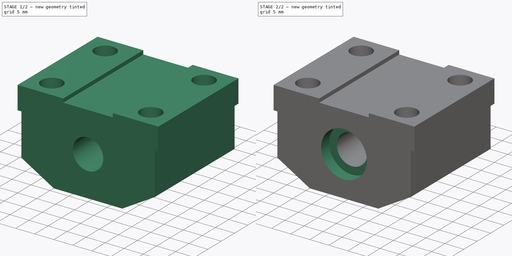
[diagram: build sequence overview — one tinted view per stage of 2, left to right]
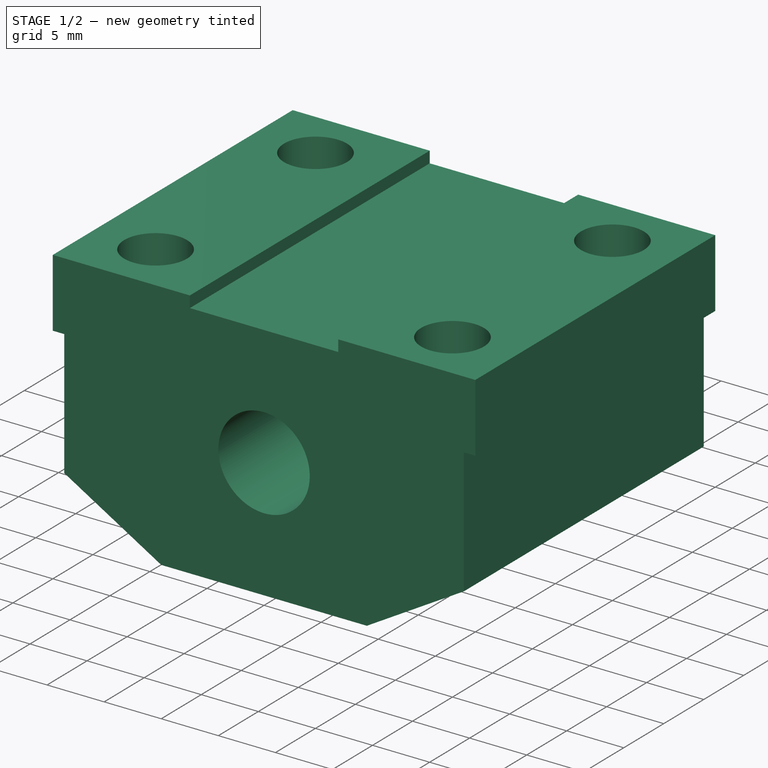
[diagram: stage 1 of 2 — iso view after this stage's code; geometry added in this stage tinted green]
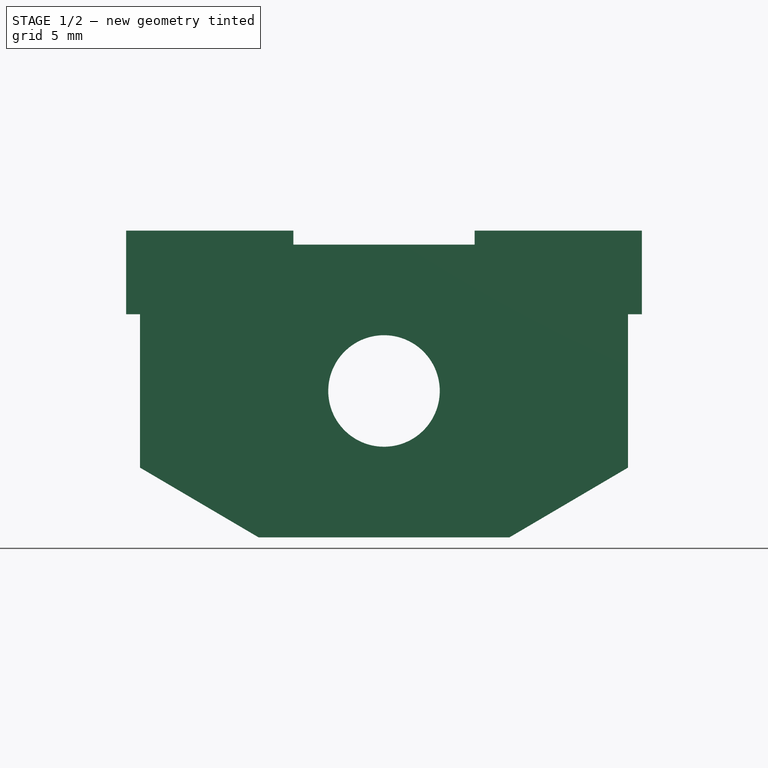
[diagram: stage 1 of 2 — front view after this stage's code; geometry added in this stage tinted green]
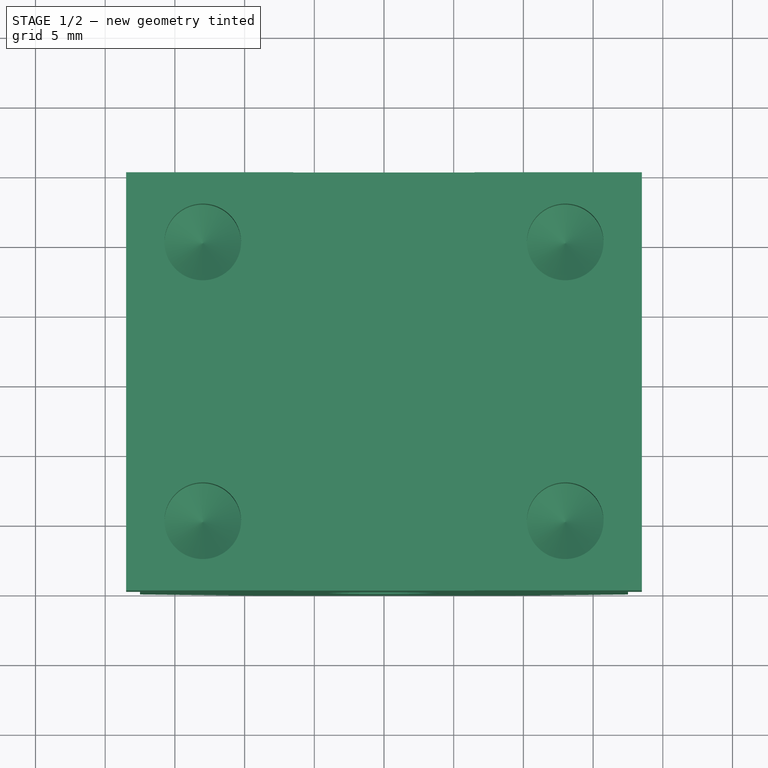
[diagram: stage 1 of 2 — top view after this stage's code; geometry added in this stage tinted green]
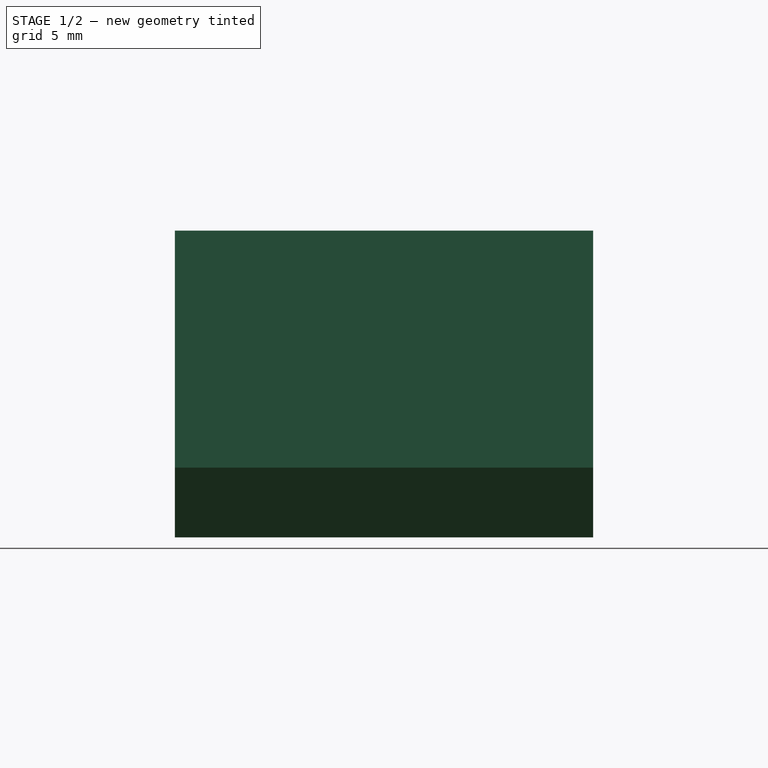
[diagram: stage 1 of 2 — right view after this stage's code; geometry added in this stage tinted green]
FCSTD DOCUMENT  (FreeCAD 1.0R39109 (Git))
Label: 1_linear_bearing
License: All rights reserved
LicenseURL: https://en.wikipedia.org/wiki/All_rights_reserved
objects: Sketcher::SketchObject×4, PartDesign::Pocket×2, App::FeaturePython×1, PartDesign::Pad×1, PartDesign::Hole×1, PartDesign::Body×1
note: 21 computed .brp shape members not serialized (recipe doc carries the construction recipe); baked Part::Feature solids carry a one-line shape summary decoded from their .brp

FEATURE [App::FeaturePython] dd  # WARN: FeaturePython — macro-defined, semantics opaque (R4)
  B_1 = 26
  C_1 = 20
  DynamicData = Created with DynamicData (v2.74) workbench. | This is a simple container object built | for holding custom properties.
  E_1 = 20.5
  F_1 = 28
  H_1 = 22
  L1_1 = 10
  L_1 = 30
  Q_1 = 80
  T_1 = 9
  W_1 = 35
  h1 = 7.5
FEATURE [Sketcher::SketchObject] Sketch
  ArcFitTolerance = 1e-06
  AttachmentSupport = -> [XZ_Plane]
  B_1 = 33
  C_1 = 22
  E_1 = 20.5
  F_1 = 28
  FullyConstrained = false
  H_1 = 22
  L1_1 = 10
  L_1 = 30
  MakeInternals = false
  MapMode = 5
  Placement = pos=(0,0,0) rot=(1,0,0;1.5708rad)
  Q_1 = 80
  T_1 = 9
  W_1 = 35
  h1 = 7.5
  expr: Constraints[27] = 12 mm
  expr: Constraints[33] = dd.H_1
  expr: Constraints[38] = dd.W_1
  sketch-geometry (20):
    g0: LineSegment [constr] StartX=17.5 StartY=-5.5 StartZ=0 EndX=17.5 EndY=17.5 EndZ=0
    g1: LineSegment StartX=-17.5 StartY=-5.5 StartZ=0 EndX=-17.5 EndY=5.5 EndZ=0
    g2: LineSegment StartX=-17.5 StartY=5.5 StartZ=0 EndX=-18.5 EndY=5.5 EndZ=0
    g3: LineSegment StartX=-18.5 StartY=5.5 StartZ=0 EndX=-18.5 EndY=11.5 EndZ=0
    g4: LineSegment StartX=17.5 StartY=-5.5 StartZ=0 EndX=17.5 EndY=5.5 EndZ=0
    g5: LineSegment StartX=17.5 StartY=5.5 StartZ=0 EndX=18.5 EndY=5.5 EndZ=0
    g6: LineSegment StartX=18.5 StartY=5.5 StartZ=0 EndX=18.5 EndY=11.5 EndZ=0
    g7: LineSegment StartX=-18.5 StartY=11.5 StartZ=0 EndX=-6.5 EndY=11.5 EndZ=0
    g8: LineSegment StartX=-6.5 StartY=11.5 StartZ=0 EndX=-6.5 EndY=10.5 EndZ=0
    g9: LineSegment StartX=-6.5 StartY=10.5 StartZ=0 EndX=6.5 EndY=10.5 EndZ=0
    g10: LineSegment StartX=6.5 StartY=10.5 StartZ=0 EndX=6.5 EndY=11.5 EndZ=0
    g11: LineSegment StartX=6.5 StartY=11.5 StartZ=0 EndX=18.5 EndY=11.5 EndZ=0
    g12: Circle CenterX=0 CenterY=0 CenterZ=0 NormalX=0 NormalY=0 NormalZ=1 AngleXU=0 Radius=4
    g13: LineSegment StartX=-17.5 StartY=-5.5 StartZ=0 EndX=-9 EndY=-10.5 EndZ=0
    g14: LineSegment StartX=-9 StartY=-10.5 StartZ=0 EndX=9 EndY=-10.5 EndZ=0
    g15: LineSegment StartX=9 StartY=-10.5 StartZ=0 EndX=17.5 EndY=-5.5 EndZ=0
    g16: LineSegment [constr] StartX=-4 StartY=0 StartZ=0 EndX=-17.5 EndY=0 EndZ=0
    g17: LineSegment [constr] StartX=0 StartY=4 StartZ=0 EndX=0 EndY=10.5 EndZ=0
    g18: LineSegment [constr] StartX=4 StartY=0 StartZ=0 EndX=17.5 EndY=0 EndZ=0
    g19: LineSegment [constr] StartX=0 StartY=-4 StartZ=0 EndX=0 EndY=-10.5 EndZ=0
  constraints (62):
    c: Vertical(g0)
    c: Coincident(g1,g2)
    c: Coincident(g2,g3)
    c: Coincident(g0,g4)
    c: PointOnObject(g4,g0)
    c: Coincident(g4,g5)
    c: Horizontal(g5)
    c: Coincident(g5,g6)
    c: Vertical(g6)
    c: Vertical(g3)
    c: Horizontal(g2)
    c: Equal(g3,g6)
    c: Equal(g2,g5)
    c: Distance(g6,g0) = 1
    c: Coincident(g3,g7)
    c: Horizontal(g7)
    c: Coincident(g7,g8)
    c: Coincident(g8,g9)
    c: Horizontal(g9)
    c: Coincident(g9,g10)
    c: Coincident(g10,g11)
    c: Coincident(g11,g6)
    c: Horizontal(g11)
    c: Vertical(g8)
    c: Vertical(g10)
    c: Equal(g7,g11)
    c: PointOnObject(g7,g11)
    c: Distance(g11,g11) = 12
    c: Coincident(g13,g14)
    c: Horizontal(g14)
    c: Coincident(g14,g15)
    c: Equal(g15,g13)
    c: Diameter(g12) = 8
    c: Distance(g14,g7) = 22
    c: Vertical(g1)
    c: Distance(g7,g9) = 1
    c: Distance(g1,g14) = 5
    c: Equal(g1,g4)
    c: Distance(g4,g1) = 35
    c: PointOnObject(g16,g12)
    c: PointOnObject(g16,g1)
    c: Horizontal(g16)
    c: PointOnObject(g17,g12)
    c: PointOnObject(g17,g9)
    c: Vertical(g17)
    c: PointOnObject(g18,g12)
    c: PointOnObject(g18,g4)
    c: Horizontal(g18)
    c: PointOnObject(g19,g12)
    c: PointOnObject(g19,g14)
    c: Vertical(g19)
    c: PointOnObject(g19,g-2)
    c: PointOnObject(g18,g-1)
    c: PointOnObject(g17,g-2)
    c: PointOnObject(g16,g-1)
    c: Equal(g16,g18)
    c: Equal(g17,g19)
    c: Coincident(g12,g-1)
    c: Distance(g3,g3) = 6
    c: DistanceX(g13,g14) = 18
    c: Coincident(g13,g1)
    c: Coincident(g15,g0)
FEATURE [PartDesign::Pad] Pad
  Direction = (0,-1,2e-16)
  Length = 30
  Length2 = 10
  Placement = pos=(0,0,0) rot=(1,0,0;1.5708rad)
  Profile = -> Sketch
  ReferenceAxis = -> Sketch [N_Axis]
  Refine = true
  Suppressed = false
  Type = 0
  expr: Length = dd.L_1
FEATURE [Sketcher::SketchObject] Sketch002
  ArcFitTolerance = 1e-06
  ExternalGeometry = -> [Pad]
  FullyConstrained = true
  MakeInternals = false
  MapMode = 5
  Placement = pos=(0,3.9e-15,17.5) rot=(0,0,1;3.14159rad)
  expr: Constraints[8] = dd.C_1
  expr: Constraints[9] = dd.B_1
  sketch-geometry (12):
    g0: LineSegment [constr] StartX=-13 StartY=25 StartZ=0 EndX=-13 EndY=5 EndZ=0
    g1: LineSegment [constr] StartX=-13 StartY=5 StartZ=0 EndX=13 EndY=5 EndZ=0
    g2: LineSegment [constr] StartX=13 StartY=5 StartZ=0 EndX=13 EndY=25 EndZ=0
    g3: LineSegment [constr] StartX=13 StartY=25 StartZ=0 EndX=-13 EndY=25 EndZ=0
    g4: Circle CenterX=-13 CenterY=25 CenterZ=0 NormalX=0 NormalY=0 NormalZ=1 AngleXU=0 Radius=2.5
    g5: Circle CenterX=13 CenterY=25 CenterZ=0 NormalX=0 NormalY=0 NormalZ=1 AngleXU=0 Radius=2.5
    g6: Circle CenterX=13 CenterY=5 CenterZ=0 NormalX=0 NormalY=0 NormalZ=1 AngleXU=0 Radius=2.5
    g7: Circle CenterX=-13 CenterY=5 CenterZ=0 NormalX=0 NormalY=0 NormalZ=1 AngleXU=0 Radius=2.5
    g8: LineSegment [constr] StartX=-13 StartY=15 StartZ=0 EndX=-18.5 EndY=15 EndZ=0
    g9: LineSegment [constr] StartX=13 StartY=15 StartZ=0 EndX=18.5 EndY=15 EndZ=0
    g10: LineSegment [constr] StartX=0 StartY=5 StartZ=0 EndX=0 EndY=0 EndZ=0
    g11: LineSegment [constr] StartX=-6.5 StartY=25 StartZ=0 EndX=-6.5 EndY=30 EndZ=0
  constraints (32):
    c: Coincident(g0,g1)
    c: Coincident(g1,g2)
    c: Coincident(g2,g3)
    c: Coincident(g3,g0)
    c: Vertical(g0)
    c: Vertical(g2)
    c: Horizontal(g1)
    c: Horizontal(g3)
    c: Distance(g2,g2) = 20
    c: Distance(g3,g3) = 26
    c: Coincident(g4,g0)
    c: Coincident(g5,g2)
    c: Coincident(g6,g1)
    c: Coincident(g7,g0)
    c: Equal(g4,g5)
    c: Equal(g5,g6)
    c: Equal(g6,g7)
    c: Diameter(g4) = 5
    c: Symmetric(g0,g0,g8)
    c: Horizontal(g8)
    c: Symmetric(g2,g2,g9)
    c: PointOnObject(g10,g1)
    c: PointOnObject(g11,g3)
    c: Vertical(g11)
    c: Vertical(g10)
    c: Equal(g9,g8)
    c: PointOnObject(g8,g-4)
    c: PointOnObject(g9,g-3)
    c: Equal(g11,g10)
    c: Coincident(g11,g-5)
    c: Coincident(g10,g-1)
    c: Horizontal(g9)
FEATURE [PartDesign::Hole] Hole
  BaseFeature = -> Pad
  CustomThreadClearance = 0
  Depth = 10
  DepthType = 0
  Diameter = 5.5
  DrillForDepth = false
  DrillPoint = 1
  DrillPointAngle = 118
  HoleCutCountersinkAngle = 90
  HoleCutCustomValues = false
  HoleCutDepth = 0
  HoleCutDiameter = 6.1
  HoleCutType = 0
  ModelThread = false
  Placement = pos=(0,0,0) rot=(1,0,0;1.5708rad)
  Profile = -> Sketch002
  Refine = true
  Suppressed = false
  Tapered = false
  TaperedAngle = 90
  ThreadClass = 0
  ThreadDepth = 10
  ThreadDepthType = 0
  ThreadDirection = 0
  ThreadFit = 0
  ThreadSize = 13
  ThreadType = 1
  Threaded = false
  UseCustomThreadClearance = false
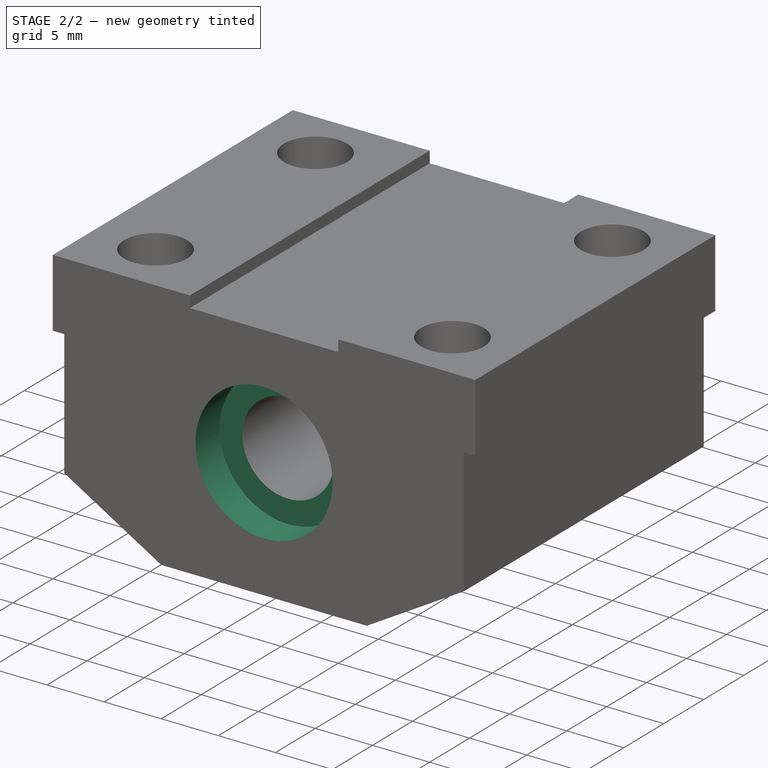
[diagram: stage 2 of 2 — iso view after this stage's code; geometry added in this stage tinted green]
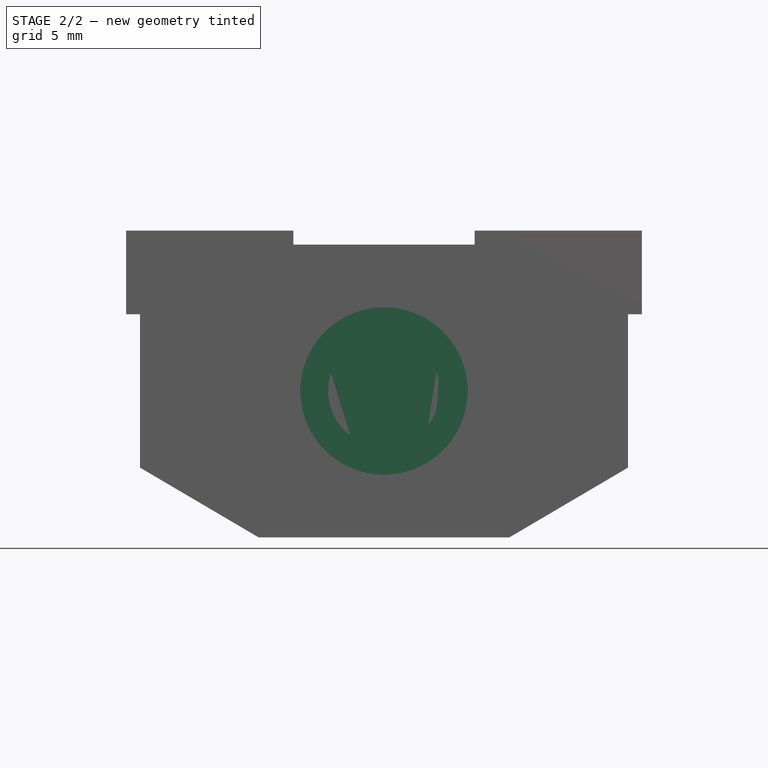
[diagram: stage 2 of 2 — front view after this stage's code; geometry added in this stage tinted green]
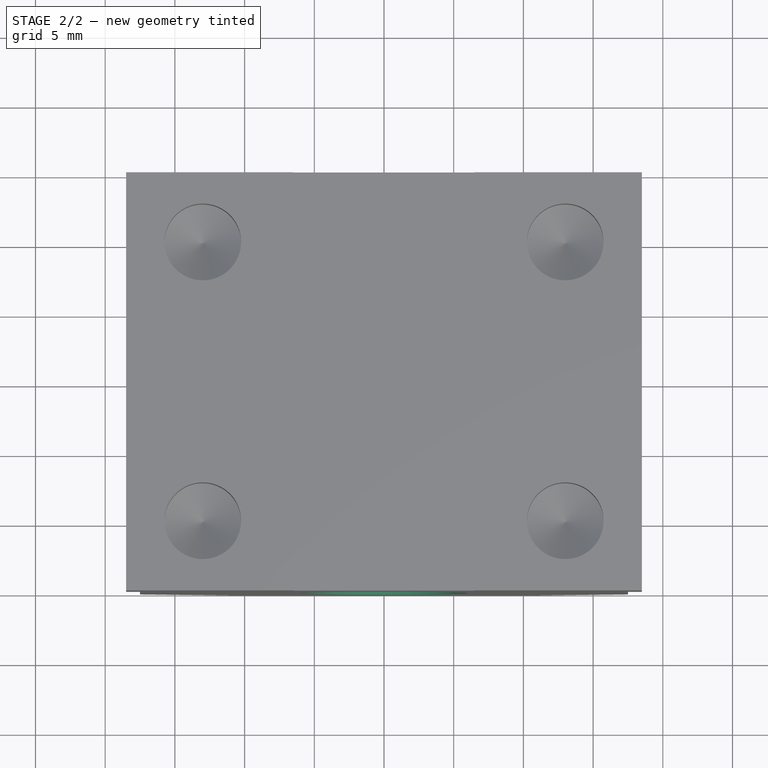
[diagram: stage 2 of 2 — top view after this stage's code; geometry added in this stage tinted green]
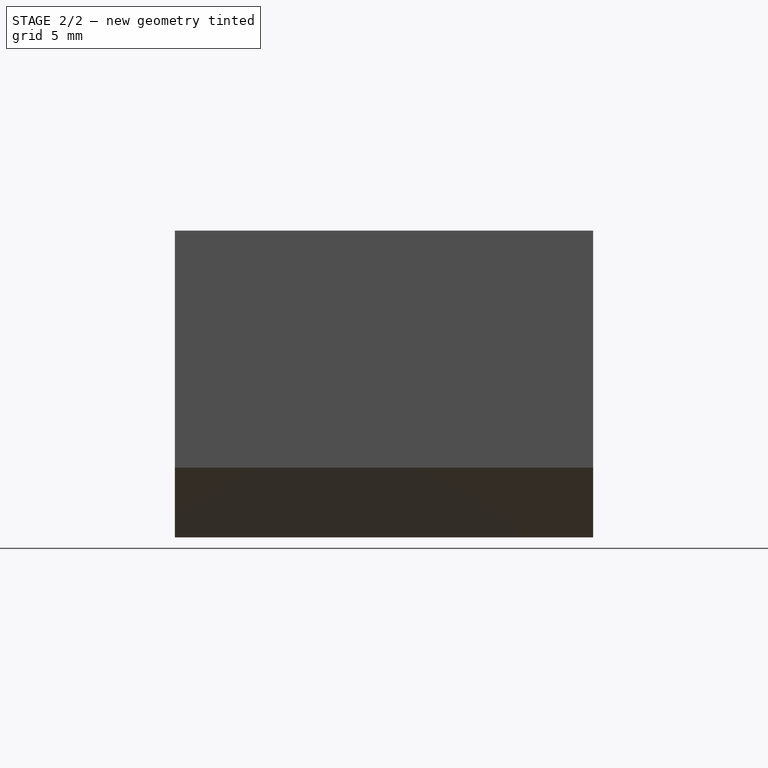
[diagram: stage 2 of 2 — right view after this stage's code; geometry added in this stage tinted green]
FEATURE [Sketcher::SketchObject] Sketch003
  ArcFitTolerance = 1e-06
  AttachmentSupport = -> [Hole]
  ExternalGeometry = -> [Hole]
  FullyConstrained = false
  MakeInternals = false
  MapMode = 5
  Placement = pos=(0,-30,0) rot=(1,0,0;1.5708rad)
  sketch-geometry (2):
    g0: Circle CenterX=0 CenterY=0 CenterZ=0 NormalX=0 NormalY=0 NormalZ=1 AngleXU=0 Radius=4
    g1: Circle CenterX=0 CenterY=0 CenterZ=0 NormalX=0 NormalY=0 NormalZ=1 AngleXU=0 Radius=6
  constraints (3):
    c: Coincident(g0,g-1)
    c: Diameter(g1) = 12
    c: Coincident(g1,g0)
FEATURE [PartDesign::Pocket] Pocket
  BaseFeature = -> Hole
  Direction = (0,1,-2e-16)
  Length = 3
  Length2 = 5
  Placement = pos=(0,0,0) rot=(1,0,0;1.5708rad)
  Profile = -> Sketch003
  ReferenceAxis = -> Sketch003 [N_Axis]
  Refine = true
  Suppressed = false
  Type = 0
FEATURE [Sketcher::SketchObject] Sketch004
  ArcFitTolerance = 1e-06
  AttachmentSupport = -> [Pocket]
  ExternalGeometry = -> [Pocket]
  FullyConstrained = true
  MakeInternals = false
  MapMode = 5
  Placement = pos=(0,3e-16,0) rot=(-1,0,0;1.5708rad)
  sketch-geometry (2):
    g0: Circle CenterX=0 CenterY=0 CenterZ=0 NormalX=0 NormalY=0 NormalZ=1 AngleXU=0 Radius=6
    g1: Circle CenterX=0 CenterY=0 CenterZ=0 NormalX=0 NormalY=0 NormalZ=1 AngleXU=0 Radius=6
  constraints (4):
    c: Coincident(g0,g-1)
    c: Diameter(g1) = 12
    c: Coincident(g1,g0)
    c: Equal(g1,g0)
FEATURE [PartDesign::Pocket] Pocket001
  BaseFeature = -> Pocket
  Direction = (0,-1,-2e-16)
  Length = 3
  Length2 = 5
  Placement = pos=(0,0,0) rot=(1,0,0;1.5708rad)
  Profile = -> Sketch004
  ReferenceAxis = -> Sketch004 [N_Axis]
  Refine = true
  Suppressed = false
  Type = 0
FEATURE [PartDesign::Body] Body
  AllowCompound = false
  Group = -> [Sketch,Pad,Sketch002,Hole,Sketch003,Pocket,Sketch004,Pocket001]
  Origin = -> Origin
  Tip = -> Pocket001
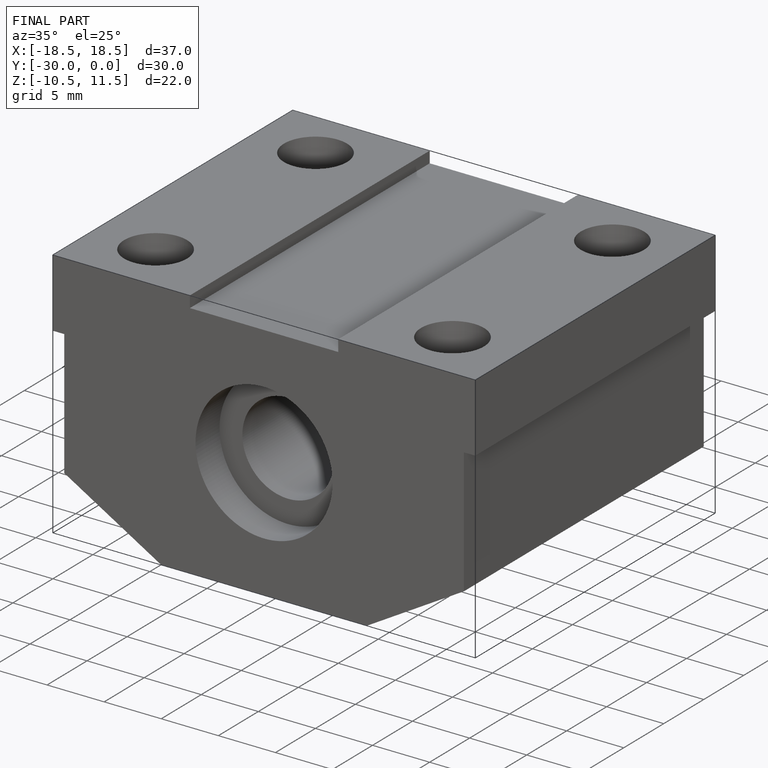
[diagram: finished part — iso view with bounding-box wireframe]
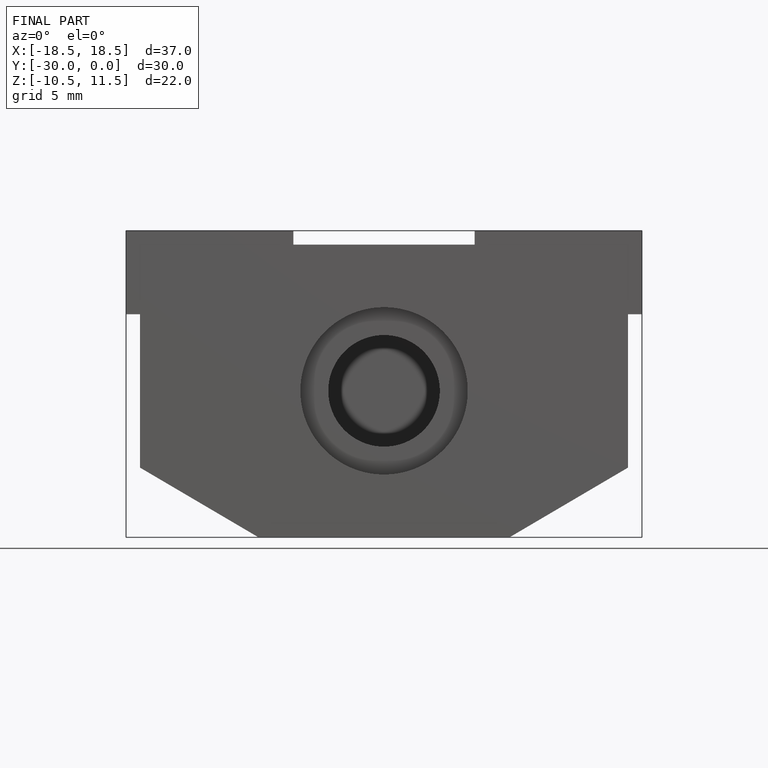
[diagram: finished part — front view with bounding-box wireframe]
